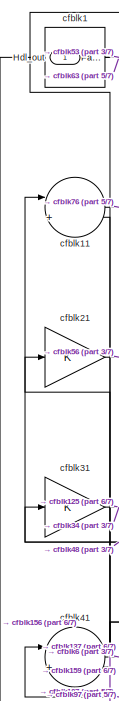
[diagram: root canvas - part 1/7, top left region]
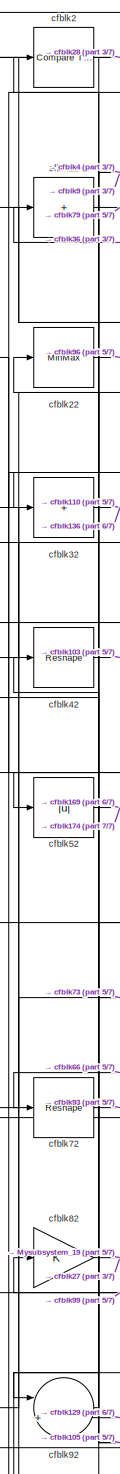
[diagram: root canvas - part 2/7, top left region]
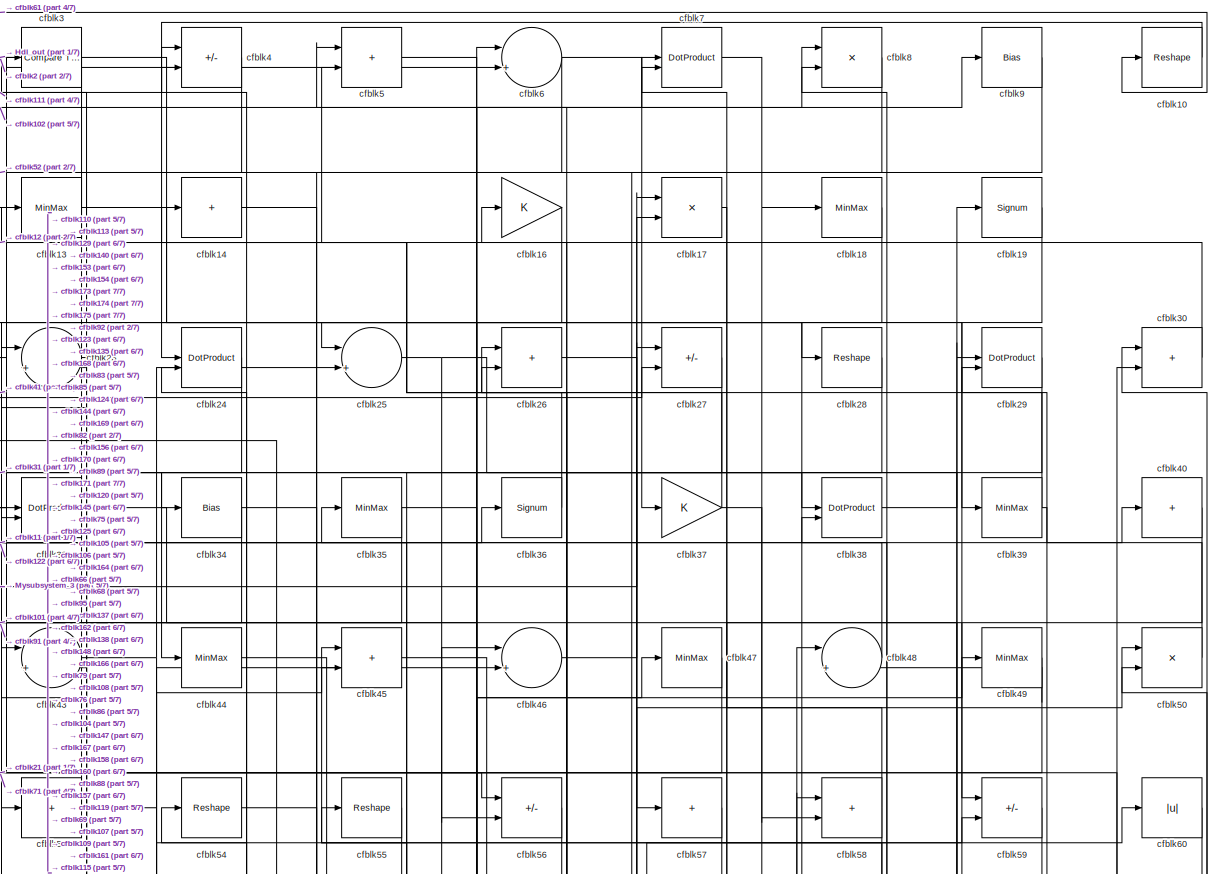
[diagram: root canvas - part 3/7, full width, top band]
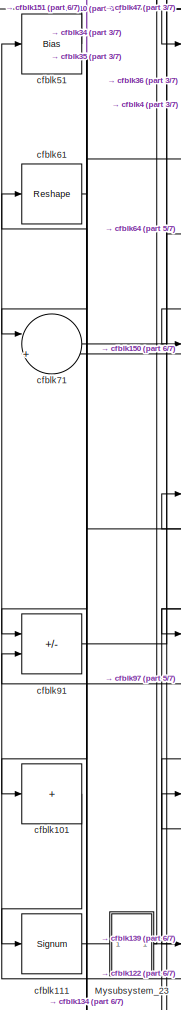
[diagram: root canvas - part 4/7, middle left region]
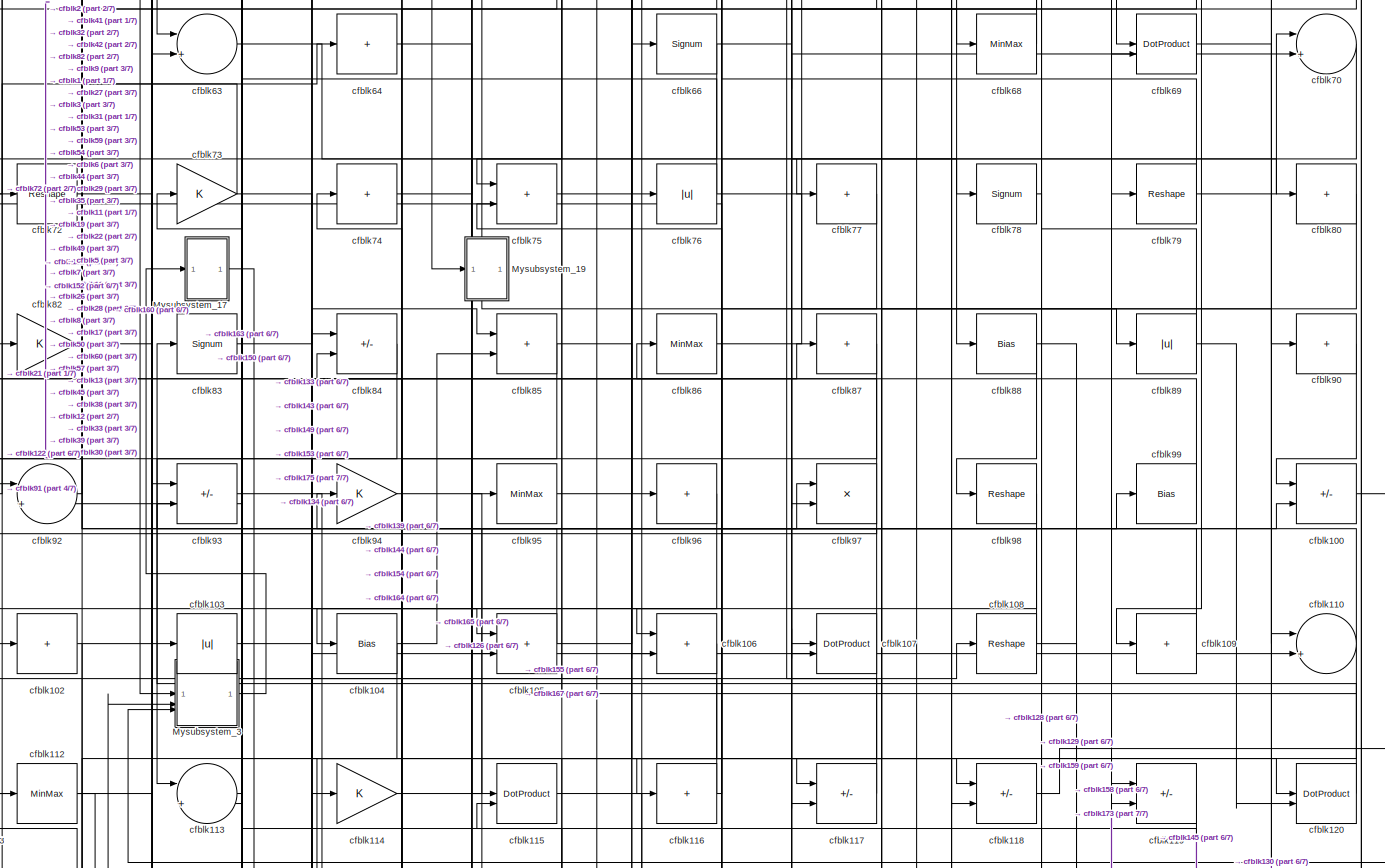
[diagram: root canvas - part 5/7, full width, middle band]
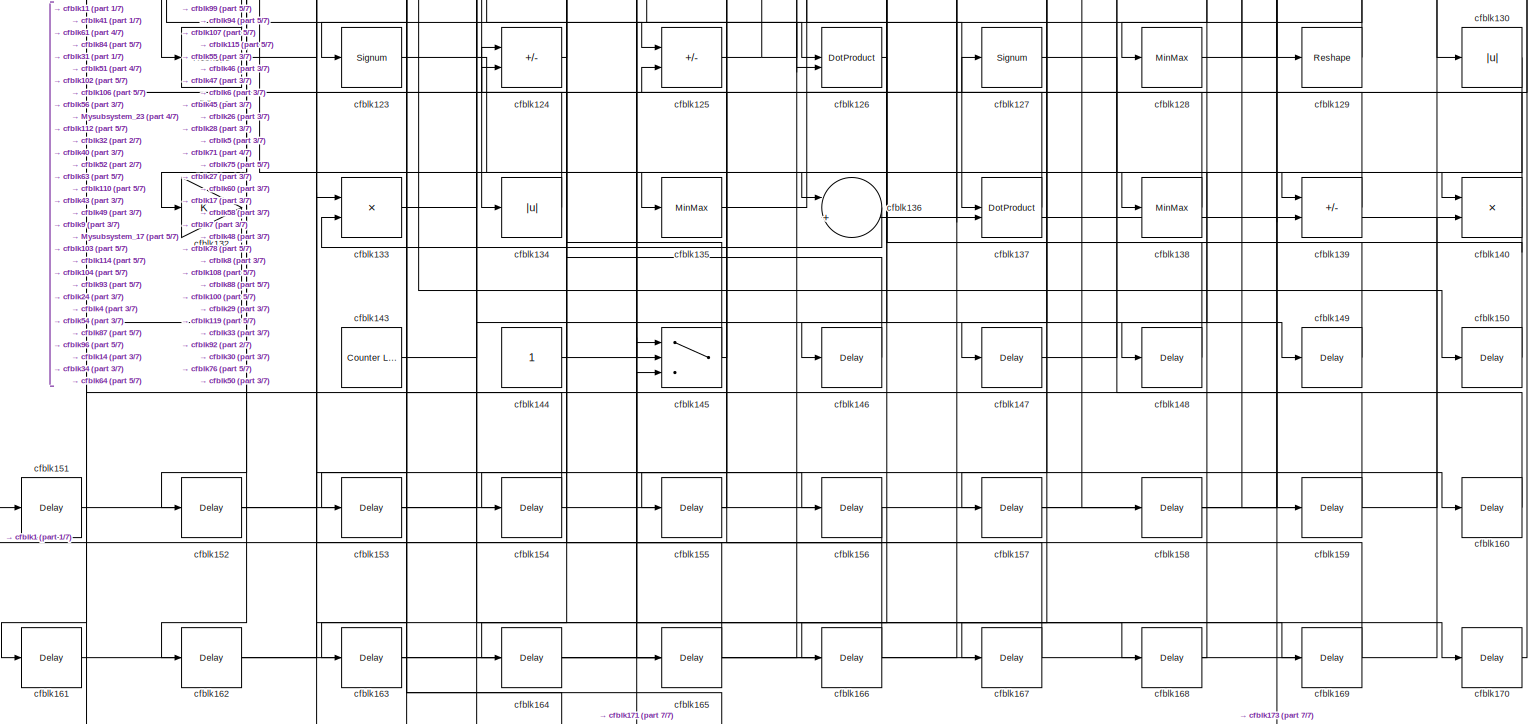
[diagram: root canvas - part 6/7, full width, bottom band]
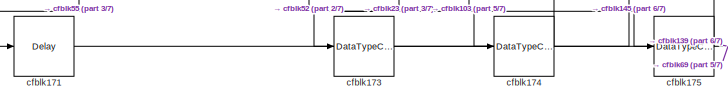
[diagram: root canvas - part 7/7, bottom left region]
MODEL slx_d9e7af3a1971
KIND model
CONFIG AbsTol = auto
CONFIG EnableMultiTasking = off
CONFIG FixedStep = auto
CONFIG MaxStep = auto
CONFIG MinStep = auto
CONFIG RelTol = 1e-3
CONFIG SampleTimeConstraint = Unconstrained
CONFIG SolverName = VariableStepAuto
CONFIG StartTime = 0.0
CONFIG StopTime = 10.0
BLOCK [Outport] Hdl_out
  OutDataTypeStr = uint8
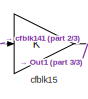
[diagram: Mysubsystem_17 - part 1/3, top center region]
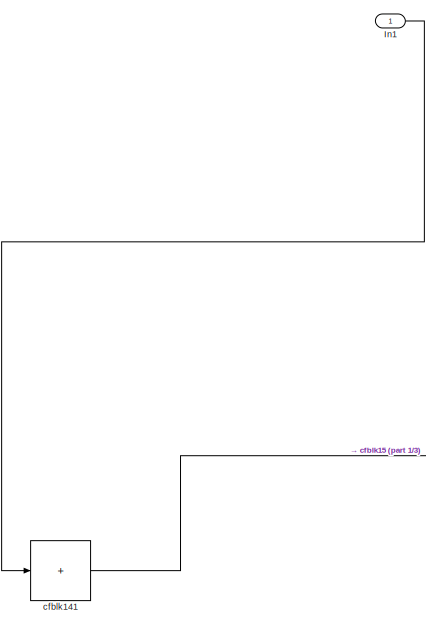
[diagram: Mysubsystem_17 - part 2/3, bottom left region]
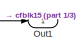
[diagram: Mysubsystem_17 - part 3/3, bottom right region]
BLOCK [SubSystem] Mysubsystem_17
  RTWFcnName = Mysubsystem_17
  RTWFcnNameOpts = User specified
  RTWFileNameOpts = Use function name
  RTWSystemCode = Reusable function
  TreatAsAtomicUnit = on
BLOCK [Inport] Mysubsystem_17/In1
BLOCK [Outport] Mysubsystem_17/Out1
BLOCK [Sum] Mysubsystem_17/cfblk141
  IconShape = rectangular
  Inputs = +
BLOCK [Gain] Mysubsystem_17/cfblk15
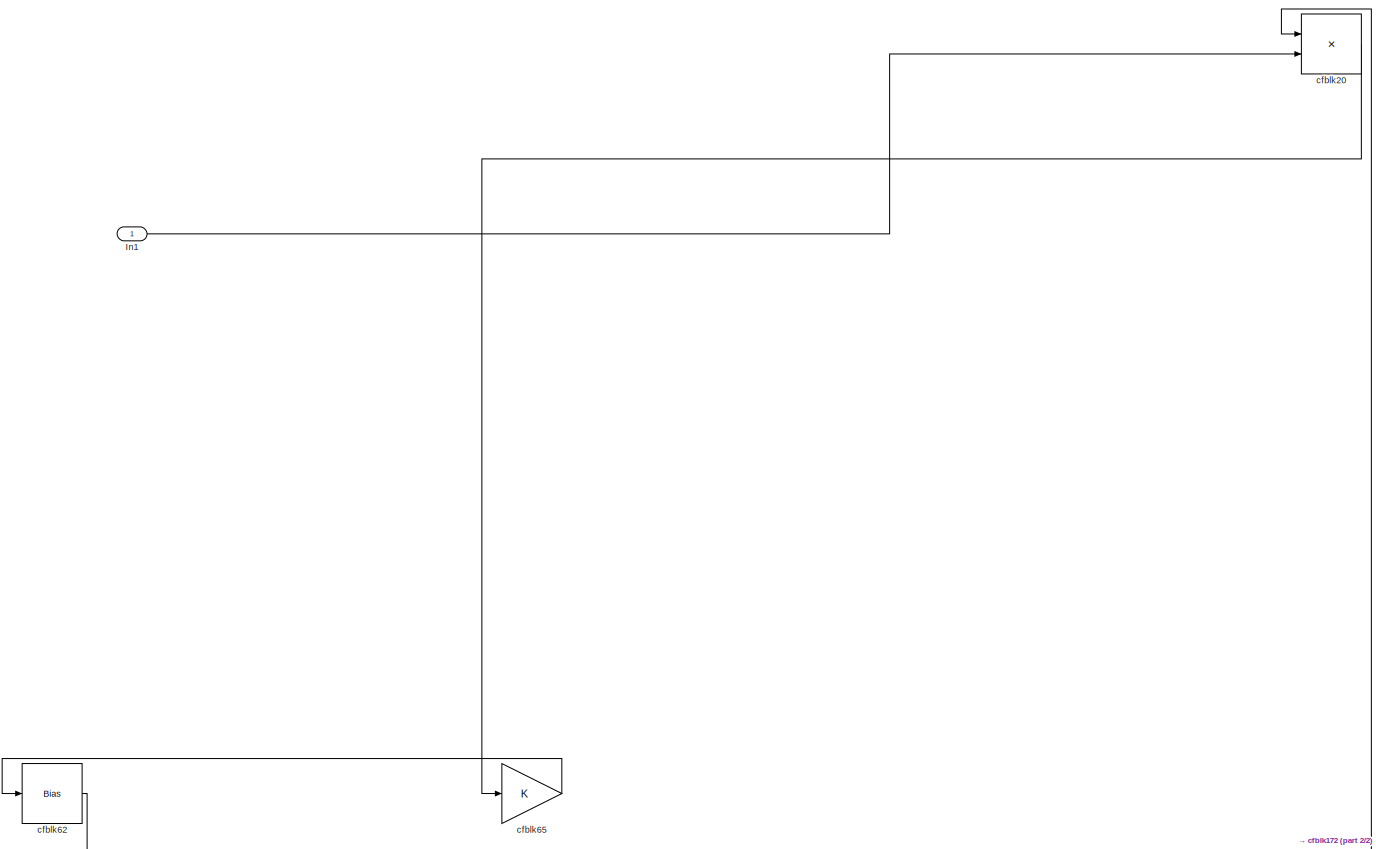
[diagram: Mysubsystem_19 - part 1/2, full width, top band]
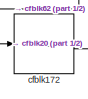
[diagram: Mysubsystem_19 - part 2/2, bottom left region]
BLOCK [SubSystem] Mysubsystem_19
  RTWFcnName = Mysubsystem_19
  RTWFcnNameOpts = User specified
  RTWFileNameOpts = Use function name
  RTWSystemCode = Reusable function
  TreatAsAtomicUnit = on
BLOCK [Inport] Mysubsystem_19/In1
BLOCK [Delay] Mysubsystem_19/cfblk172
  InputPortMap = u0
  SampleTime = 1
BLOCK [Product] Mysubsystem_19/cfblk20
  Inputs = */
  RndMeth = Zero
  SaturateOnIntegerOverflow = on
BLOCK [Bias] Mysubsystem_19/cfblk62
  Bias = 0.0
  SaturateOnIntegerOverflow = off
BLOCK [Gain] Mysubsystem_19/cfblk65
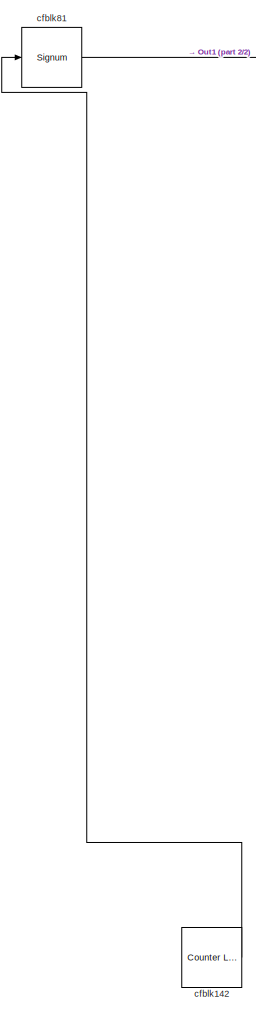
[diagram: Mysubsystem_23 - part 1/2, left side, full height]
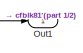
[diagram: Mysubsystem_23 - part 2/2, bottom right region]
BLOCK [SubSystem] Mysubsystem_23
  RTWFcnName = Mysubsystem_23
  RTWFcnNameOpts = User specified
  RTWFileNameOpts = Use function name
  RTWSystemCode = Reusable function
  TreatAsAtomicUnit = on
BLOCK [Outport] Mysubsystem_23/Out1
BLOCK [Reference] Mysubsystem_23/cfblk142  REF=hdlsllib/Sources/Counter
Limited
  SourceBlock = hdlsllib/Sources/Counter\nLimited
  SourceType = Counter Limited
BLOCK [Signum] Mysubsystem_23/cfblk81
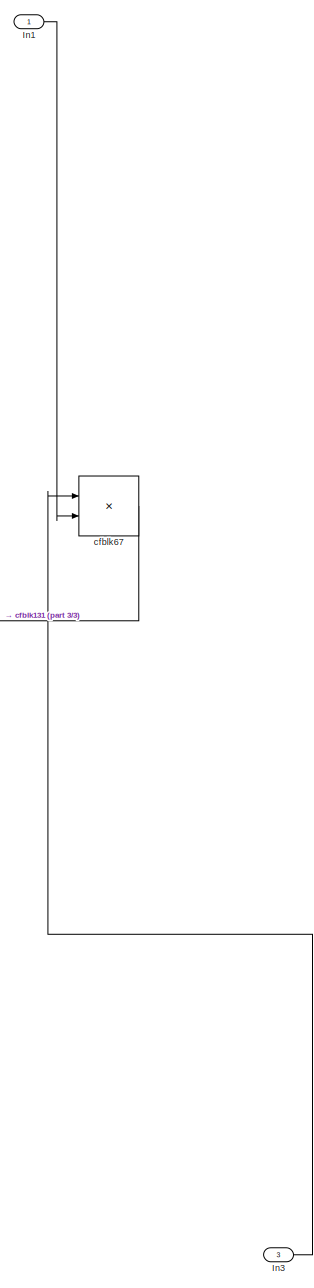
[diagram: Mysubsystem_3 - part 1/3, right side, full height]
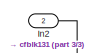
[diagram: Mysubsystem_3 - part 2/3, middle right region]
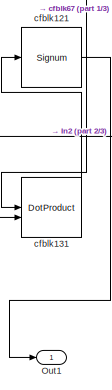
[diagram: Mysubsystem_3 - part 3/3, bottom left region]
BLOCK [SubSystem] Mysubsystem_3
  RTWFcnName = Mysubsystem_3
  RTWFcnNameOpts = User specified
  RTWFileNameOpts = Use function name
  RTWSystemCode = Reusable function
  TreatAsAtomicUnit = on
BLOCK [Inport] Mysubsystem_3/In1
BLOCK [Inport] Mysubsystem_3/In2
  Port = 2
BLOCK [Inport] Mysubsystem_3/In3
  Port = 3
BLOCK [Outport] Mysubsystem_3/Out1
BLOCK [Signum] Mysubsystem_3/cfblk121
BLOCK [DotProduct] Mysubsystem_3/cfblk131
  OutDataTypeStr = Inherit: Inherit via internal rule
BLOCK [Product] Mysubsystem_3/cfblk67
  Inputs = */
  RndMeth = Zero
  SaturateOnIntegerOverflow = on
BLOCK [Reference] cfblk1  REF=hdlsllib/Logic and Bit
Operations/Detect Fall
Nonpositive
  SourceBlock = hdlsllib/Logic and Bit\nOperations/Detect Fall\nNonpositive
  SourceType = Detect Fall Nonpositive
BLOCK [Reshape] cfblk10
BLOCK [Sum] cfblk100
  IconShape = rectangular
  Inputs = +-
  OutDataTypeStr = uint8
BLOCK [Sum] cfblk101
  IconShape = rectangular
  Inputs = +
  OutDataTypeStr = uint8
BLOCK [Sum] cfblk102
  IconShape = rectangular
  Inputs = +
  OutDataTypeStr = uint8
BLOCK [Abs] cfblk103
  OutDataTypeStr = uint8
  SaturateOnIntegerOverflow = off
BLOCK [Bias] cfblk104
  Bias = 0.0
  SaturateOnIntegerOverflow = off
BLOCK [Sum] cfblk105
  IconShape = rectangular
  OutDataTypeStr = uint8
BLOCK [Sum] cfblk106
  IconShape = rectangular
  OutDataTypeStr = uint8
BLOCK [DotProduct] cfblk107
  OutDataTypeStr = uint8
BLOCK [Reshape] cfblk108
BLOCK [Sum] cfblk109
  IconShape = rectangular
  Inputs = +
  OutDataTypeStr = uint8
BLOCK [Sum] cfblk11
  Inputs = |++
  OutDataTypeStr = uint8
BLOCK [Sum] cfblk110
  Inputs = |++
  OutDataTypeStr = uint8
BLOCK [Signum] cfblk111
BLOCK [MinMax] cfblk112
  OutDataTypeStr = uint8
BLOCK [Sum] cfblk113
  Inputs = |++
  OutDataTypeStr = uint8
BLOCK [Gain] cfblk114
  OutDataTypeStr = uint8
BLOCK [DotProduct] cfblk115
  OutDataTypeStr = uint8
BLOCK [Sum] cfblk116
  IconShape = rectangular
  Inputs = +
  OutDataTypeStr = uint8
BLOCK [Sum] cfblk117
  IconShape = rectangular
  Inputs = +-
  OutDataTypeStr = uint8
BLOCK [Sum] cfblk118
  IconShape = rectangular
  Inputs = +-
  OutDataTypeStr = uint8
BLOCK [Sum] cfblk119
  IconShape = rectangular
  Inputs = +-
  OutDataTypeStr = uint8
BLOCK [Sum] cfblk12
  IconShape = rectangular
  Inputs = +
  OutDataTypeStr = uint8
BLOCK [DotProduct] cfblk120
  OutDataTypeStr = uint8
BLOCK [Reshape] cfblk122
BLOCK [Signum] cfblk123
BLOCK [Sum] cfblk124
  IconShape = rectangular
  Inputs = +-
  OutDataTypeStr = uint8
BLOCK [Sum] cfblk125
  IconShape = rectangular
  Inputs = +-
  OutDataTypeStr = uint8
BLOCK [DotProduct] cfblk126
  OutDataTypeStr = uint8
BLOCK [Signum] cfblk127
BLOCK [MinMax] cfblk128
  OutDataTypeStr = uint8
BLOCK [Reshape] cfblk129
BLOCK [MinMax] cfblk13
  OutDataTypeStr = uint8
BLOCK [Abs] cfblk130
  OutDataTypeStr = uint8
  SaturateOnIntegerOverflow = off
BLOCK [Gain] cfblk132
  OutDataTypeStr = uint8
BLOCK [Product] cfblk133
  Inputs = */
  OutDataTypeStr = uint8
  RndMeth = Zero
  SaturateOnIntegerOverflow = on
BLOCK [Abs] cfblk134
  OutDataTypeStr = uint8
  SaturateOnIntegerOverflow = off
BLOCK [MinMax] cfblk135
  OutDataTypeStr = uint8
BLOCK [Sum] cfblk136
  Inputs = |++
  OutDataTypeStr = uint8
BLOCK [DotProduct] cfblk137
  OutDataTypeStr = uint8
BLOCK [MinMax] cfblk138
  OutDataTypeStr = uint8
BLOCK [Sum] cfblk139
  IconShape = rectangular
  Inputs = +-
  OutDataTypeStr = uint8
BLOCK [Sum] cfblk14
  IconShape = rectangular
  Inputs = +
  OutDataTypeStr = uint8
BLOCK [Product] cfblk140
  Inputs = */
  OutDataTypeStr = uint8
  RndMeth = Zero
  SaturateOnIntegerOverflow = on
BLOCK [Reference] cfblk143  REF=hdlsllib/Sources/Counter
Limited
  SourceBlock = hdlsllib/Sources/Counter\nLimited
  SourceType = Counter Limited
BLOCK [Constant] cfblk144
  OutDataTypeStr = uint8
  SampleTime = -1
BLOCK [Switch] cfblk145
  InputSameDT = off
  OutDataTypeStr = uint8
  SaturateOnIntegerOverflow = off
BLOCK [Delay] cfblk146
  InputPortMap = u0
  SampleTime = 1
BLOCK [Delay] cfblk147
  InputPortMap = u0
  SampleTime = 1
BLOCK [Delay] cfblk148
  InputPortMap = u0
  SampleTime = 1
BLOCK [Delay] cfblk149
  InputPortMap = u0
  SampleTime = 1
BLOCK [Delay] cfblk150
  InputPortMap = u0
  SampleTime = 1
BLOCK [Delay] cfblk151
  InputPortMap = u0
  SampleTime = 1
BLOCK [Delay] cfblk152
  InputPortMap = u0
  SampleTime = 1
BLOCK [Delay] cfblk153
  InputPortMap = u0
  SampleTime = 1
BLOCK [Delay] cfblk154
  InputPortMap = u0
  SampleTime = 1
BLOCK [Delay] cfblk155
  InputPortMap = u0
  SampleTime = 1
BLOCK [Delay] cfblk156
  InputPortMap = u0
  SampleTime = 1
BLOCK [Delay] cfblk157
  InputPortMap = u0
  SampleTime = 1
BLOCK [Delay] cfblk158
  InputPortMap = u0
  SampleTime = 1
BLOCK [Delay] cfblk159
  InputPortMap = u0
  SampleTime = 1
BLOCK [Gain] cfblk16
  OutDataTypeStr = uint8
BLOCK [Delay] cfblk160
  InputPortMap = u0
  SampleTime = 1
BLOCK [Delay] cfblk161
  InputPortMap = u0
  SampleTime = 1
BLOCK [Delay] cfblk162
  InputPortMap = u0
  SampleTime = 1
BLOCK [Delay] cfblk163
  InputPortMap = u0
  SampleTime = 1
BLOCK [Delay] cfblk164
  InputPortMap = u0
  SampleTime = 1
BLOCK [Delay] cfblk165
  InputPortMap = u0
  SampleTime = 1
BLOCK [Delay] cfblk166
  InputPortMap = u0
  SampleTime = 1
BLOCK [Delay] cfblk167
  InputPortMap = u0
  SampleTime = 1
BLOCK [Delay] cfblk168
  InputPortMap = u0
  SampleTime = 1
BLOCK [Delay] cfblk169
  InputPortMap = u0
  SampleTime = 1
BLOCK [Product] cfblk17
  Inputs = */
  OutDataTypeStr = uint8
  RndMeth = Zero
  SaturateOnIntegerOverflow = on
BLOCK [Delay] cfblk170
  InputPortMap = u0
  SampleTime = 1
BLOCK [Delay] cfblk171
  InputPortMap = u0
  SampleTime = 1
BLOCK [DataTypeConversion] cfblk173
  OutDataTypeStr = uint8
  RndMeth = Floor
  SaturateOnIntegerOverflow = off
BLOCK [DataTypeConversion] cfblk174
  OutDataTypeStr = uint8
  RndMeth = Floor
  SaturateOnIntegerOverflow = off
BLOCK [DataTypeConversion] cfblk175
  OutDataTypeStr = uint8
  RndMeth = Floor
  SaturateOnIntegerOverflow = off
BLOCK [MinMax] cfblk18
  OutDataTypeStr = uint8
BLOCK [Signum] cfblk19
BLOCK [Reference] cfblk2  REF=hdlsllib/Logic and Bit
Operations/Compare
To Constant
  SourceBlock = hdlsllib/Logic and Bit\nOperations/Compare\nTo Constant
  SourceType = Compare To Constant
BLOCK [Gain] cfblk21
  OutDataTypeStr = uint8
BLOCK [MinMax] cfblk22
  OutDataTypeStr = uint8
BLOCK [Sum] cfblk23
  Inputs = |++
  OutDataTypeStr = uint8
BLOCK [DotProduct] cfblk24
  OutDataTypeStr = uint8
BLOCK [Sum] cfblk25
  Inputs = |++
  OutDataTypeStr = uint8
BLOCK [Sum] cfblk26
  IconShape = rectangular
  OutDataTypeStr = uint8
BLOCK [Sum] cfblk27
  IconShape = rectangular
  Inputs = +-
  OutDataTypeStr = uint8
BLOCK [Reshape] cfblk28
BLOCK [DotProduct] cfblk29
  OutDataTypeStr = uint8
BLOCK [Reference] cfblk3  REF=hdlsllib/Logic and Bit
Operations/Compare
To Zero
  SourceBlock = hdlsllib/Logic and Bit\nOperations/Compare\nTo Zero
  SourceType = Compare To Zero
BLOCK [Sum] cfblk30
  IconShape = rectangular
  OutDataTypeStr = uint8
BLOCK [Gain] cfblk31
  OutDataTypeStr = uint8
BLOCK [Sum] cfblk32
  IconShape = rectangular
  Inputs = +
  OutDataTypeStr = uint8
BLOCK [DotProduct] cfblk33
  OutDataTypeStr = uint8
BLOCK [Bias] cfblk34
  Bias = 0.0
  SaturateOnIntegerOverflow = off
BLOCK [MinMax] cfblk35
  OutDataTypeStr = uint8
BLOCK [Signum] cfblk36
BLOCK [Gain] cfblk37
  OutDataTypeStr = uint8
BLOCK [DotProduct] cfblk38
  OutDataTypeStr = uint8
BLOCK [MinMax] cfblk39
  OutDataTypeStr = uint8
BLOCK [Sum] cfblk4
  IconShape = rectangular
  Inputs = +-
  OutDataTypeStr = uint8
BLOCK [Sum] cfblk40
  IconShape = rectangular
  Inputs = +
  OutDataTypeStr = uint8
BLOCK [Sum] cfblk41
  Inputs = |++
  OutDataTypeStr = uint8
BLOCK [Reshape] cfblk42
BLOCK [Sum] cfblk43
  Inputs = |++
  OutDataTypeStr = uint8
BLOCK [MinMax] cfblk44
  OutDataTypeStr = uint8
BLOCK [Sum] cfblk45
  IconShape = rectangular
  OutDataTypeStr = uint8
BLOCK [Sum] cfblk46
  Inputs = |++
  OutDataTypeStr = uint8
BLOCK [MinMax] cfblk47
  OutDataTypeStr = uint8
BLOCK [Sum] cfblk48
  Inputs = |++
  OutDataTypeStr = uint8
BLOCK [MinMax] cfblk49
  OutDataTypeStr = uint8
BLOCK [Sum] cfblk5
  IconShape = rectangular
  OutDataTypeStr = uint8
BLOCK [Product] cfblk50
  Inputs = */
  OutDataTypeStr = uint8
  RndMeth = Zero
  SaturateOnIntegerOverflow = on
BLOCK [Bias] cfblk51
  Bias = 0.0
  SaturateOnIntegerOverflow = off
BLOCK [Abs] cfblk52
  OutDataTypeStr = uint8
  SaturateOnIntegerOverflow = off
BLOCK [Sum] cfblk53
  IconShape = rectangular
  Inputs = +
  OutDataTypeStr = uint8
BLOCK [Reshape] cfblk54
BLOCK [Reshape] cfblk55
BLOCK [Sum] cfblk56
  IconShape = rectangular
  Inputs = +-
  OutDataTypeStr = uint8
BLOCK [Sum] cfblk57
  IconShape = rectangular
  Inputs = +
  OutDataTypeStr = uint8
BLOCK [Sum] cfblk58
  IconShape = rectangular
  OutDataTypeStr = uint8
BLOCK [Sum] cfblk59
  IconShape = rectangular
  Inputs = +-
  OutDataTypeStr = uint8
BLOCK [Sum] cfblk6
  Inputs = |++
  OutDataTypeStr = uint8
BLOCK [Abs] cfblk60
  OutDataTypeStr = uint8
  SaturateOnIntegerOverflow = off
BLOCK [Reshape] cfblk61
BLOCK [Sum] cfblk63
  Inputs = |++
  OutDataTypeStr = uint8
BLOCK [Sum] cfblk64
  IconShape = rectangular
  Inputs = +
  OutDataTypeStr = uint8
BLOCK [Signum] cfblk66
BLOCK [MinMax] cfblk68
  OutDataTypeStr = uint8
BLOCK [DotProduct] cfblk69
  OutDataTypeStr = uint8
BLOCK [DotProduct] cfblk7
  OutDataTypeStr = uint8
BLOCK [Sum] cfblk70
  Inputs = |++
  OutDataTypeStr = uint8
BLOCK [Sum] cfblk71
  Inputs = |++
  OutDataTypeStr = uint8
BLOCK [Reshape] cfblk72
BLOCK [Gain] cfblk73
  OutDataTypeStr = uint8
BLOCK [Sum] cfblk74
  IconShape = rectangular
  Inputs = +
  OutDataTypeStr = uint8
BLOCK [Sum] cfblk75
  IconShape = rectangular
  OutDataTypeStr = uint8
BLOCK [Abs] cfblk76
  OutDataTypeStr = uint8
  SaturateOnIntegerOverflow = off
BLOCK [Sum] cfblk77
  IconShape = rectangular
  Inputs = +
  OutDataTypeStr = uint8
BLOCK [Signum] cfblk78
BLOCK [Reshape] cfblk79
BLOCK [Product] cfblk8
  Inputs = */
  OutDataTypeStr = uint8
  RndMeth = Zero
  SaturateOnIntegerOverflow = on
BLOCK [Sum] cfblk80
  IconShape = rectangular
  Inputs = +
  OutDataTypeStr = uint8
BLOCK [Gain] cfblk82
  OutDataTypeStr = uint8
BLOCK [Signum] cfblk83
BLOCK [Sum] cfblk84
  IconShape = rectangular
  Inputs = +-
  OutDataTypeStr = uint8
BLOCK [Sum] cfblk85
  IconShape = rectangular
  OutDataTypeStr = uint8
BLOCK [MinMax] cfblk86
  OutDataTypeStr = uint8
BLOCK [Sum] cfblk87
  IconShape = rectangular
  Inputs = +
  OutDataTypeStr = uint8
BLOCK [Bias] cfblk88
  Bias = 0.0
  SaturateOnIntegerOverflow = off
BLOCK [Abs] cfblk89
  OutDataTypeStr = uint8
  SaturateOnIntegerOverflow = off
BLOCK [Bias] cfblk9
  Bias = 0.0
  SaturateOnIntegerOverflow = off
BLOCK [Sum] cfblk90
  IconShape = rectangular
  Inputs = +
  OutDataTypeStr = uint8
BLOCK [Sum] cfblk91
  IconShape = rectangular
  Inputs = +-
  OutDataTypeStr = uint8
BLOCK [Sum] cfblk92
  Inputs = |++
  OutDataTypeStr = uint8
BLOCK [Sum] cfblk93
  IconShape = rectangular
  Inputs = +-
  OutDataTypeStr = uint8
BLOCK [Gain] cfblk94
  OutDataTypeStr = uint8
BLOCK [MinMax] cfblk95
  OutDataTypeStr = uint8
BLOCK [Sum] cfblk96
  IconShape = rectangular
  Inputs = +
  OutDataTypeStr = uint8
BLOCK [Product] cfblk97
  Inputs = */
  OutDataTypeStr = uint8
  RndMeth = Zero
  SaturateOnIntegerOverflow = on
BLOCK [Reshape] cfblk98
BLOCK [Bias] cfblk99
  Bias = 0.0
  SaturateOnIntegerOverflow = off
LINE Mysubsystem_17/In1:1 -> Mysubsystem_17/cfblk141:1
LINE Mysubsystem_17/cfblk141:1 -> Mysubsystem_17/cfblk15:1
LINE Mysubsystem_17/cfblk15:1 -> Mysubsystem_17/Out1:1
LINE Mysubsystem_17:1 -> cfblk150:1
LINE Mysubsystem_19/In1:1 -> Mysubsystem_19/cfblk20:2
LINE Mysubsystem_19/cfblk172:1 -> Mysubsystem_19/cfblk20:1
LINE Mysubsystem_19/cfblk20:1 -> Mysubsystem_19/cfblk65:1
LINE Mysubsystem_19/cfblk62:1 -> Mysubsystem_19/cfblk172:1
LINE Mysubsystem_19/cfblk65:1 -> Mysubsystem_19/cfblk62:1
LINE Mysubsystem_23/cfblk142:1 -> Mysubsystem_23/cfblk81:1
LINE Mysubsystem_23/cfblk81:1 -> Mysubsystem_23/Out1:1
LINE Mysubsystem_23:1 -> cfblk139:1
LINE Mysubsystem_3/In1:1 -> Mysubsystem_3/cfblk67:2
LINE Mysubsystem_3/In2:1 -> Mysubsystem_3/cfblk131:2
LINE Mysubsystem_3/In3:1 -> Mysubsystem_3/cfblk67:1
LINE Mysubsystem_3/cfblk121:1 -> Mysubsystem_3/Out1:1
LINE Mysubsystem_3/cfblk131:1 -> Mysubsystem_3/cfblk121:1
LINE Mysubsystem_3/cfblk67:1 -> Mysubsystem_3/cfblk131:1
LINE Mysubsystem_3:1 -> Mysubsystem_17:1
LINE cfblk100:1 -> Mysubsystem_3:2
LINE cfblk101:1 -> cfblk111:1
NET cfblk102:1 -> cfblk152:1, cfblk9:1
NET cfblk103:1 -> cfblk149:1, cfblk175:1
NET cfblk104:1 -> cfblk134:1, cfblk85:2
NET cfblk105:1 -> cfblk2:1, cfblk7:2
LINE cfblk106:1 -> cfblk132:1
NET cfblk107:1 -> cfblk155:1, cfblk41:1, cfblk74:1
NET cfblk108:1 -> cfblk129:1, cfblk26:2
LINE cfblk109:1 -> cfblk94:1
LINE cfblk10:1 -> cfblk24:1
NET cfblk110:1 -> cfblk117:2, cfblk163:1, cfblk3:1
LINE cfblk111:1 -> cfblk4:1
LINE cfblk112:1 -> cfblk160:1
LINE cfblk113:1 -> cfblk73:1
LINE cfblk114:1 -> cfblk97:1
LINE cfblk115:1 -> cfblk30:1
NET cfblk116:1 -> cfblk86:1, cfblk93:2
LINE cfblk117:1 -> cfblk102:1
LINE cfblk118:1 -> Mysubsystem_3:3
LINE cfblk119:1 -> cfblk145:2
LINE cfblk11:1 -> cfblk76:1
NET cfblk120:1 -> cfblk35:1, cfblk83:1
NET cfblk122:1 -> cfblk40:1, cfblk51:1
NET cfblk123:1 -> cfblk138:1, cfblk45:2
LINE cfblk124:1 -> cfblk54:1
NET cfblk125:1 -> cfblk46:1, cfblk47:1
LINE cfblk126:1 -> cfblk146:1
LINE cfblk127:1 -> cfblk140:1
LINE cfblk128:1 -> cfblk100:2
NET cfblk129:1 -> cfblk33:2, cfblk92:2
LINE cfblk12:1 -> cfblk79:1
LINE cfblk130:1 -> cfblk148:1
LINE cfblk132:1 -> cfblk161:1
LINE cfblk133:1 -> cfblk87:1
LINE cfblk134:1 -> cfblk61:1
LINE cfblk135:1 -> cfblk27:1
LINE cfblk136:1 -> cfblk133:2
NET cfblk137:1 -> cfblk127:1, cfblk41:2
LINE cfblk138:1 -> cfblk26:1
LINE cfblk139:1 -> cfblk84:2
LINE cfblk13:1 -> cfblk88:1
NET cfblk140:1 -> cfblk136:2, cfblk43:1
LINE cfblk143:1 -> cfblk114:1
NET cfblk144:1 -> cfblk24:2, cfblk99:1
NET cfblk145:1 -> cfblk124:1, cfblk55:1
LINE cfblk146:1 -> cfblk124:2
LINE cfblk147:1 -> cfblk48:1
LINE cfblk148:1 -> cfblk5:1
LINE cfblk149:1 -> cfblk75:2
LINE cfblk14:1 -> cfblk156:1
LINE cfblk150:1 -> cfblk71:2
LINE cfblk151:1 -> cfblk140:2
LINE cfblk152:1 -> cfblk63:2
LINE cfblk153:1 -> cfblk84:1
LINE cfblk154:1 -> cfblk43:2
LINE cfblk155:1 -> cfblk125:2
LINE cfblk156:1 -> cfblk1:1
LINE cfblk157:1 -> cfblk29:1
LINE cfblk158:1 -> cfblk119:2
LINE cfblk159:1 -> cfblk11:2
LINE cfblk160:1 -> cfblk58:1
LINE cfblk161:1 -> cfblk30:2
LINE cfblk162:1 -> cfblk33:1
LINE cfblk163:1 -> cfblk107:1
LINE cfblk164:1 -> cfblk6:1
LINE cfblk165:1 -> cfblk133:1
LINE cfblk166:1 -> cfblk145:1
LINE cfblk167:1 -> cfblk115:2
LINE cfblk168:1 -> cfblk8:2
LINE cfblk169:1 -> cfblk4:2
LINE cfblk16:1 -> cfblk53:1
LINE cfblk170:1 -> cfblk50:2
LINE cfblk171:1 -> cfblk145:3
NET cfblk173:1 -> cfblk139:2, cfblk69:2
LINE cfblk174:1 -> cfblk23:1
LINE cfblk175:1 -> cfblk23:2
LINE cfblk17:1 -> cfblk147:1
LINE cfblk18:1 -> cfblk25:1
NET cfblk19:1 -> cfblk106:2, cfblk39:1
LINE cfblk1:1 -> cfblk63:1
LINE cfblk21:1 -> cfblk56:1
LINE cfblk22:1 -> cfblk96:1
LINE cfblk23:1 -> cfblk173:1
LINE cfblk24:1 -> cfblk44:1
NET cfblk25:1 -> cfblk38:1, cfblk56:2
LINE cfblk26:1 -> cfblk57:1
LINE cfblk27:1 -> cfblk113:2
NET cfblk28:1 -> Mysubsystem_3:1, cfblk166:1
LINE cfblk29:1 -> cfblk75:1
NET cfblk2:1 -> cfblk28:1, cfblk32:1
LINE cfblk30:1 -> cfblk5:2
NET cfblk31:1 -> cfblk125:1, cfblk34:1
NET cfblk32:1 -> cfblk110:1, cfblk136:1
LINE cfblk33:1 -> cfblk119:1
NET cfblk34:1 -> cfblk170:1, cfblk91:1
NET cfblk35:1 -> cfblk101:1, cfblk68:1
LINE cfblk36:1 -> cfblk12:1
NET cfblk37:1 -> cfblk14:1, cfblk58:2
LINE cfblk38:1 -> cfblk19:1
NET cfblk39:1 -> cfblk109:1, cfblk13:1
LINE cfblk3:1 -> cfblk69:1
NET cfblk40:1 -> cfblk167:1, cfblk59:1
LINE cfblk41:1 -> cfblk6:2
LINE cfblk42:1 -> cfblk103:1
NET cfblk43:1 -> cfblk135:1, cfblk168:1, cfblk25:2
LINE cfblk44:1 -> cfblk89:1
LINE cfblk45:1 -> cfblk137:1
LINE cfblk46:1 -> cfblk17:1
LINE cfblk47:1 -> cfblk71:1
LINE cfblk48:1 -> cfblk11:1
NET cfblk49:1 -> cfblk123:1, cfblk48:2
LINE cfblk4:1 -> cfblk52:1
LINE cfblk50:1 -> cfblk29:2
LINE cfblk51:1 -> cfblk151:1
NET cfblk52:1 -> cfblk169:1, cfblk174:1
NET cfblk53:1 -> Hdl_out:1, cfblk110:2, cfblk120:1, cfblk46:2, cfblk85:1
LINE cfblk54:1 -> cfblk115:1
LINE cfblk55:1 -> cfblk171:1
LINE cfblk56:1 -> cfblk162:1
LINE cfblk57:1 -> cfblk104:1
NET cfblk58:1 -> cfblk157:1, cfblk7:1
LINE cfblk59:1 -> cfblk107:2
LINE cfblk5:1 -> cfblk66:1
LINE cfblk60:1 -> cfblk137:2
LINE cfblk61:1 -> cfblk10:1
LINE cfblk63:1 -> cfblk95:1
LINE cfblk64:1 -> cfblk165:1
NET cfblk66:1 -> cfblk50:1, cfblk70:2, cfblk72:1, cfblk78:1
LINE cfblk68:1 -> cfblk45:1
LINE cfblk69:1 -> cfblk90:1
NET cfblk6:1 -> cfblk105:2, cfblk37:1
NET cfblk70:1 -> cfblk116:1, cfblk77:1
LINE cfblk71:1 -> cfblk36:1
LINE cfblk72:1 -> cfblk93:1
NET cfblk73:1 -> cfblk105:1, cfblk42:1
LINE cfblk74:1 -> cfblk80:1
LINE cfblk75:1 -> cfblk49:1
NET cfblk76:1 -> cfblk130:1, cfblk17:2, cfblk31:1
LINE cfblk77:1 -> cfblk106:1
LINE cfblk78:1 -> cfblk128:1
NET cfblk79:1 -> cfblk16:1, cfblk70:1
NET cfblk7:1 -> cfblk158:1, cfblk18:1
LINE cfblk80:1 -> cfblk117:1
NET cfblk82:1 -> Mysubsystem_19:1, cfblk27:2
LINE cfblk83:1 -> cfblk59:2
LINE cfblk84:1 -> cfblk122:1
NET cfblk85:1 -> cfblk113:1, cfblk118:1
NET cfblk86:1 -> cfblk118:2, cfblk60:1
NET cfblk87:1 -> cfblk164:1, cfblk97:2
NET cfblk88:1 -> cfblk159:1, cfblk98:1
NET cfblk89:1 -> cfblk120:2, cfblk38:2
LINE cfblk8:1 -> cfblk108:1
LINE cfblk90:1 -> cfblk100:1
LINE cfblk91:1 -> cfblk64:1
LINE cfblk92:1 -> cfblk22:1
LINE cfblk93:1 -> cfblk126:2
LINE cfblk94:1 -> cfblk126:1
LINE cfblk95:1 -> cfblk8:1
LINE cfblk96:1 -> cfblk154:1
NET cfblk97:1 -> cfblk21:1, cfblk91:2
LINE cfblk98:1 -> cfblk112:1
LINE cfblk99:1 -> cfblk82:1
NET cfblk9:1 -> cfblk153:1, cfblk92:1
note: NET lines group one-source signal fan-out (src -> all destinations, sorted); 1:1 wires keep LINE
